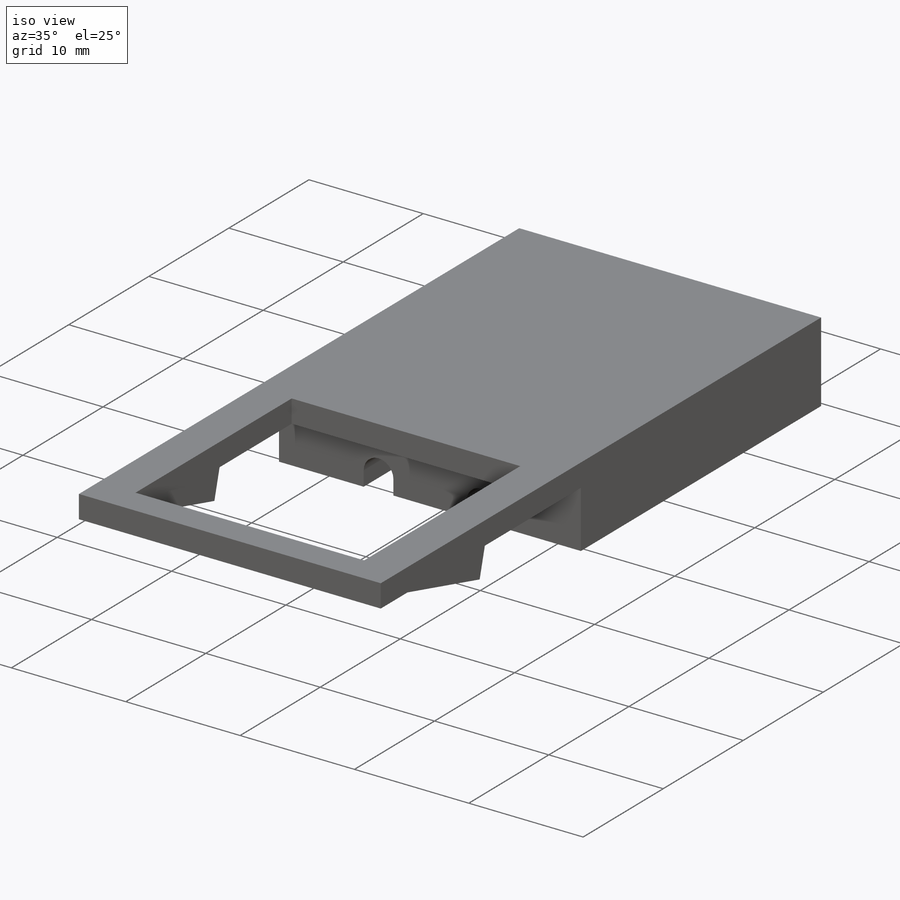
[diagram: iso view]
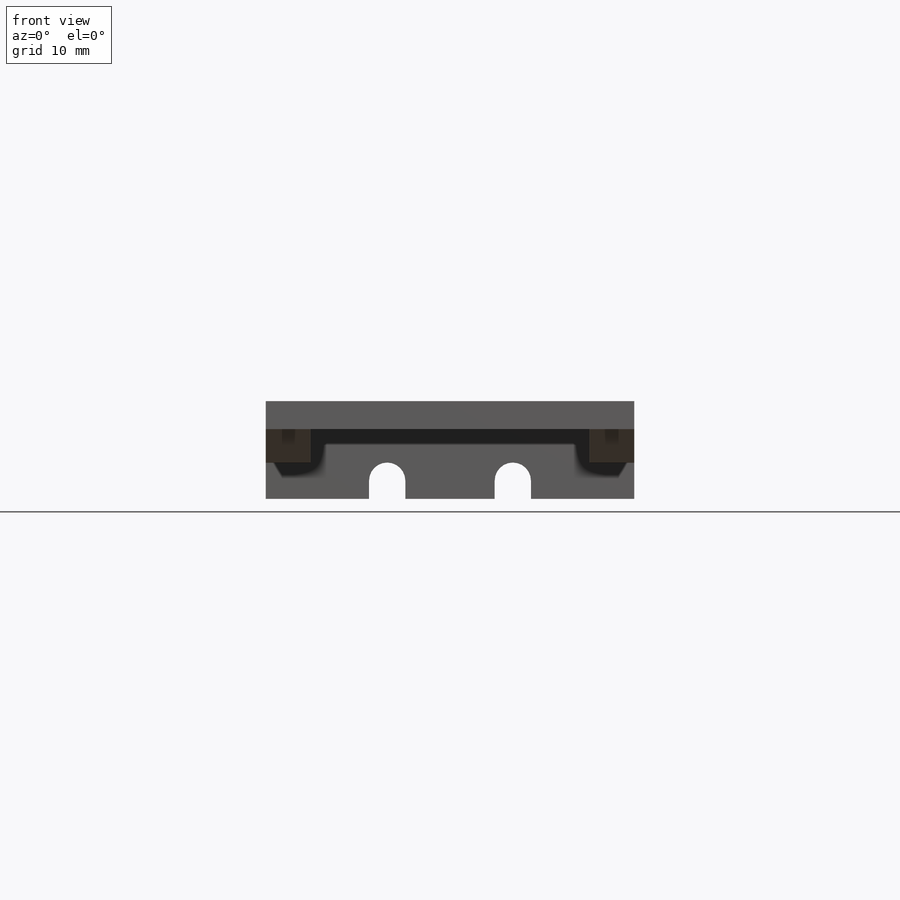
[diagram: front view]
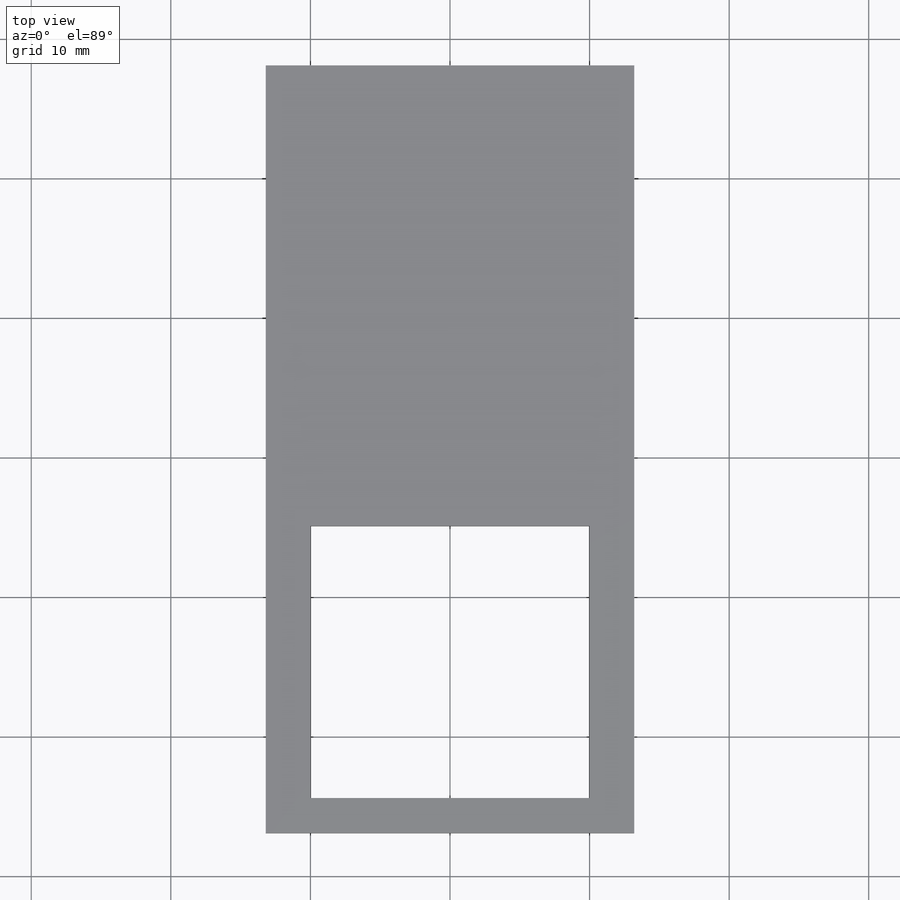
[diagram: top view]
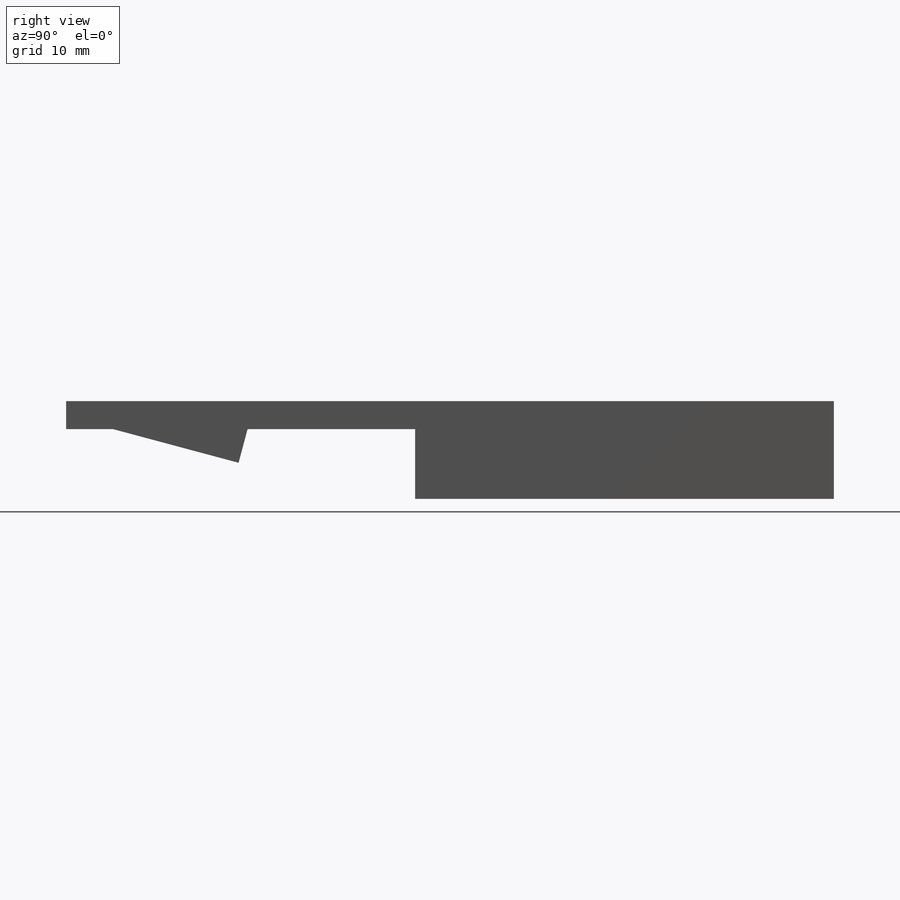
[diagram: right view]
SOLIDWORKS PART (.sldprt)
format: sldprt  version: not decoded by parser v0  size: 390,144 bytes
history: native  units: mm
features: sketch x17, cut_extrude x15, extrude x2, material x1 (+13 scaffold rows collapsed)
feature tree (48):
  scaffold x13  (default folders/planes/origin — collapsed)
  material  "Material <not specified>"
  sketch  "Sketch1"
  extrude  "Boss-Extrude1"  Depth=12mm
  sketch  "Sketch3"
  cut_extrude  "Cut-Extrude2"  Depth=5mm
  sketch  "Sketch4"
  cut_extrude  "Cut-Extrude3"  Depth=1.3mm
  sketch  "Sketch5"
  cut_extrude  "Cut-Extrude4"  [1 undecoded]
  sketch  "Sketch6"
  cut_extrude  "Cut-Extrude5"  [1 undecoded]
  sketch  "Sketch7"  dims[D1=~2.50469mm]
  cut_extrude  "Cut-Extrude6"  [1 undecoded]
  sketch  "Sketch8"  dims[D1=~2.834007mm]
  cut_extrude  "Cut-Extrude7"  [1 undecoded]
  sketch  "Sketch12"
  extrude  "Boss-Extrude2"  Depth=27mm
  sketch  "Sketch13"
  cut_extrude  "Cut-Extrude8"  [1 undecoded]
  sketch  "Sketch14"
  cut_extrude  "Cut-Extrude9"  [1 undecoded]
  sketch  "Sketch18"  dims[D1=3.5mm]
  cut_extrude  "Cut-Extrude12"  [1 undecoded]
  sketch  "Sketch19"
  cut_extrude  "Cut-Extrude13"  [1 undecoded]
  sketch  "Sketch20"
  cut_extrude  "Cut-Extrude14"  [1 undecoded]
  sketch  "Sketch21"  dims[c1.D1=75.0deg c2.D1=2.5mm]
  cut_extrude  "Cut-Extrude15"  [1 undecoded]
  sketch  "Sketch24"
  cut_extrude  "Cut-Extrude18"  Depth=5mm
  sketch  "Sketch25"
  cut_extrude  "Cut-Extrude19"  [1 undecoded]
  sketch  "Sketch26"  dims[D1=~1.432888mm]
  cut_extrude  "Cut-Extrude20"  [1 undecoded]
decode coverage: 10 of 34 modeling features carry decoded parameters
note: ~ marks probable driven/reference dimensions
note: 12 parameter values undecoded
summary: no parameter record found for 12 features
note: suppression state not decoded; provenance and decode notes live in map.json
